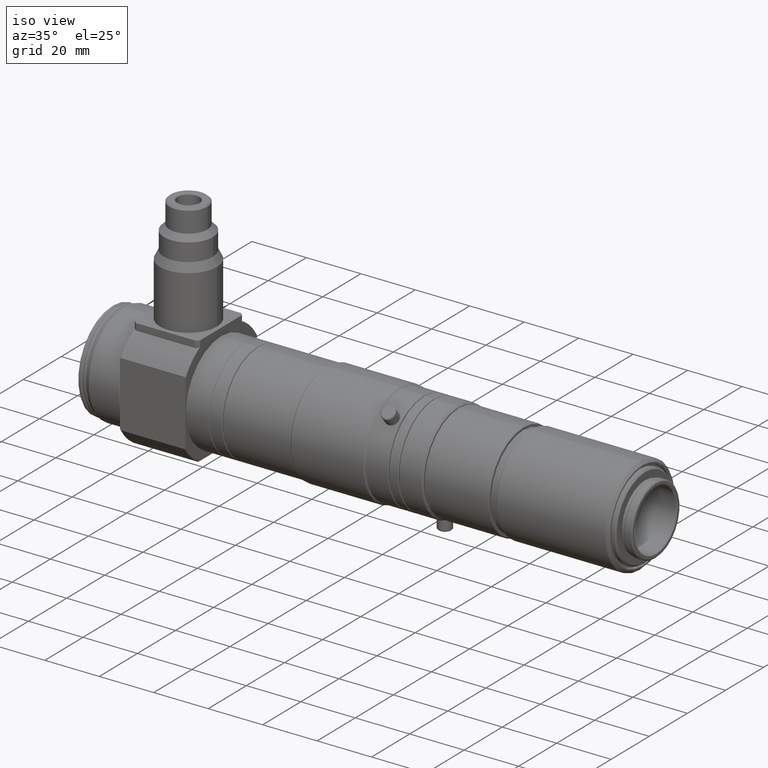
[diagram: clean part render]
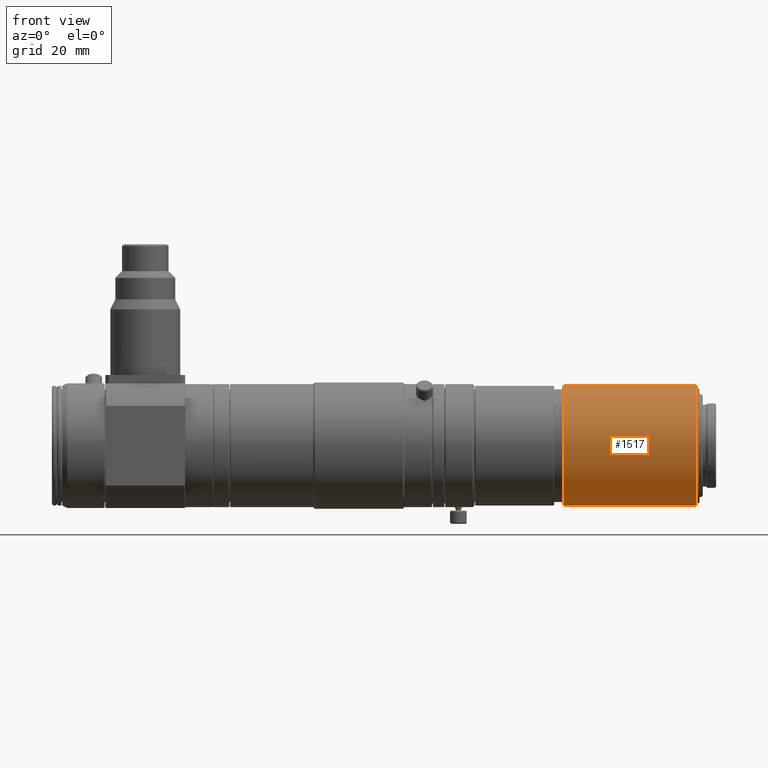
[diagram: tour spotlight — one face highlighted and labeled with its STEP entity id]
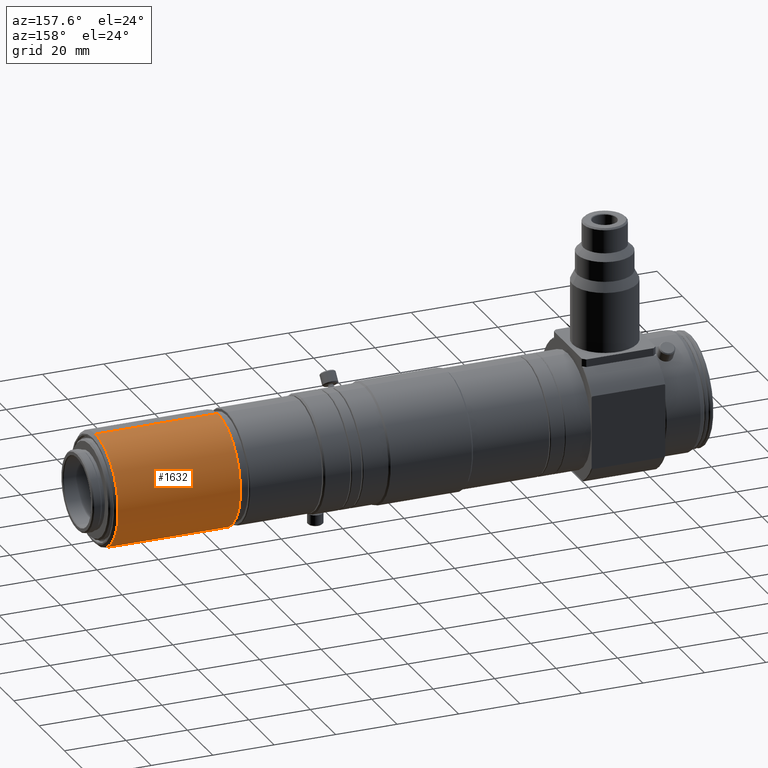
[diagram: tour spotlight — one face highlighted and labeled with its STEP entity id]
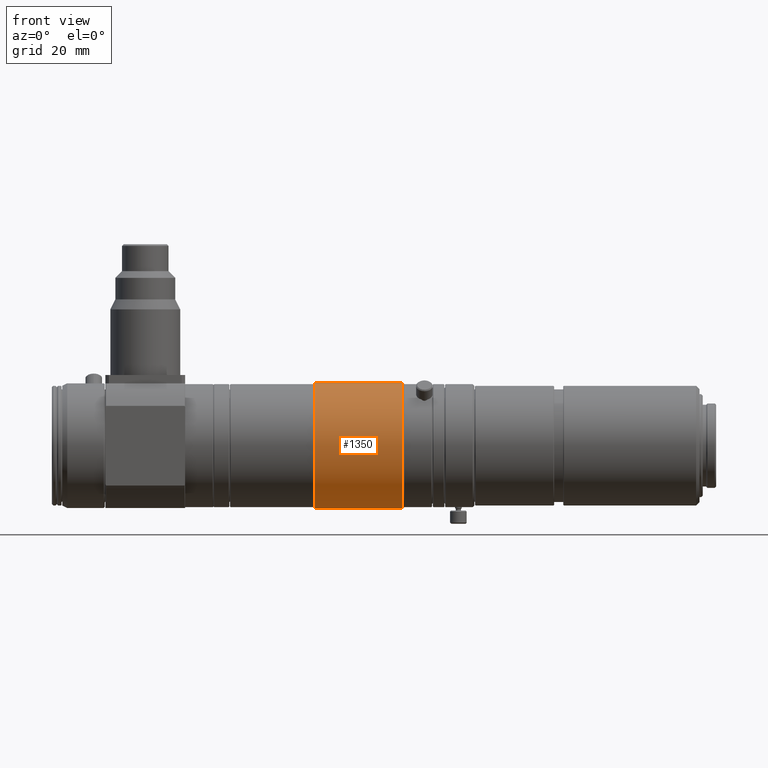
[diagram: tour spotlight — one face highlighted and labeled with its STEP entity id]
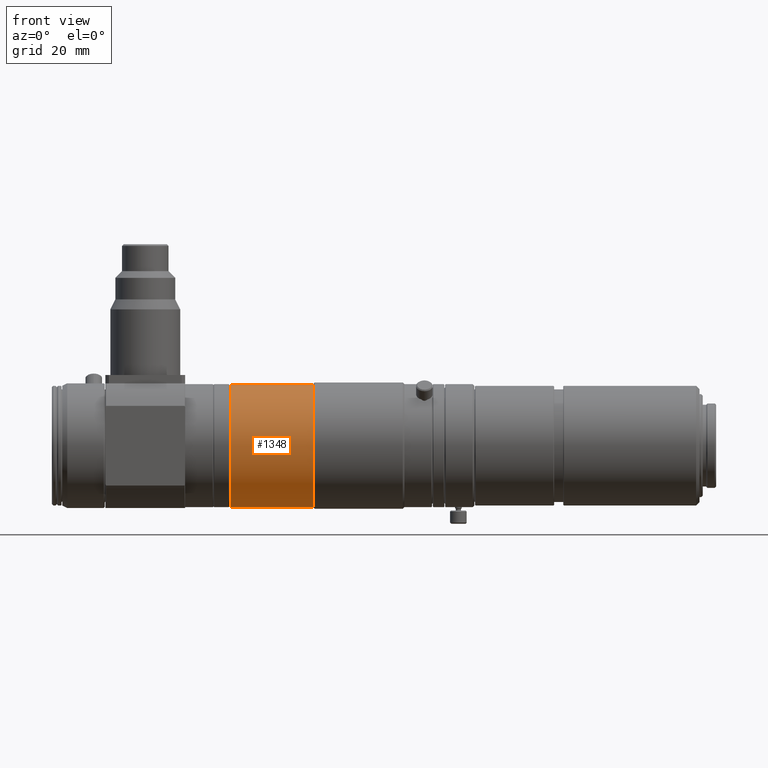
[diagram: tour spotlight — one face highlighted and labeled with its STEP entity id]
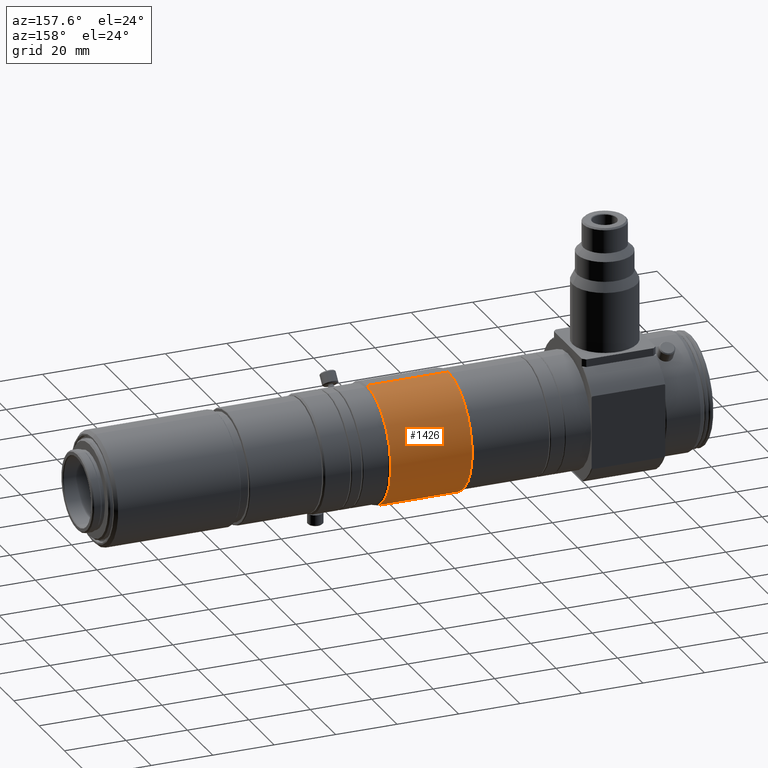
[diagram: tour spotlight — one face highlighted and labeled with its STEP entity id]
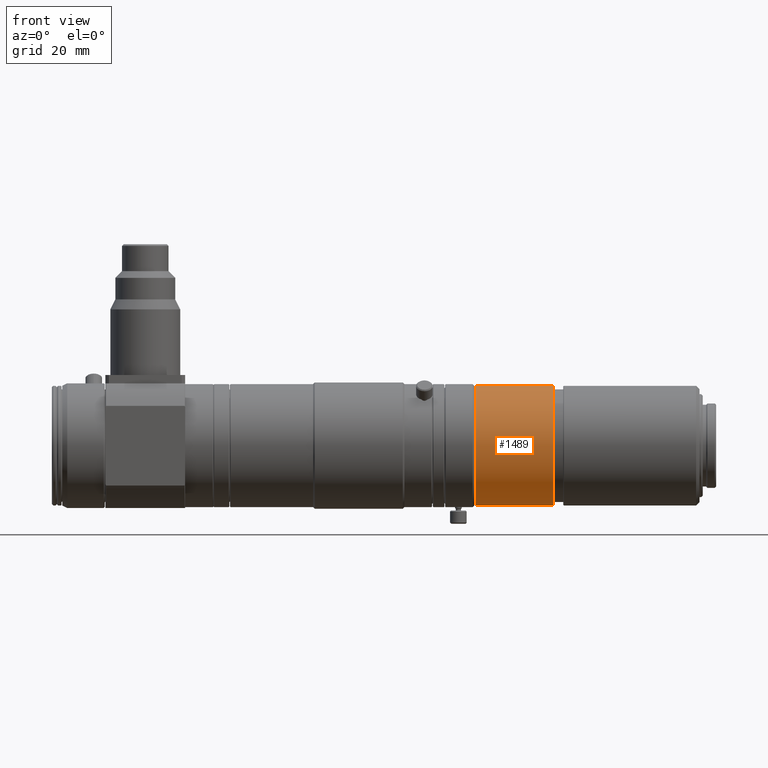
[diagram: tour spotlight — one face highlighted and labeled with its STEP entity id]
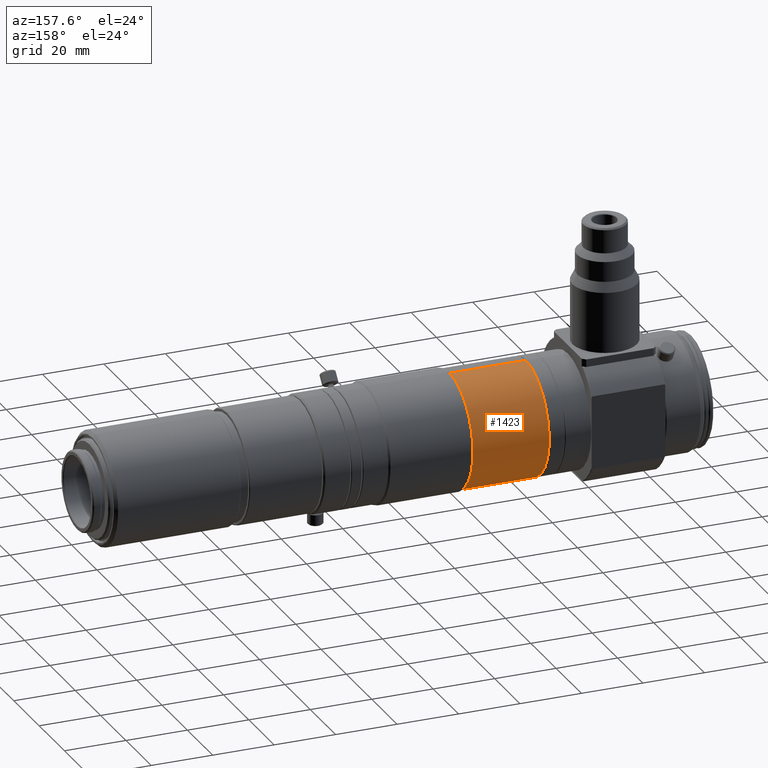
[diagram: tour spotlight — one face highlighted and labeled with its STEP entity id]
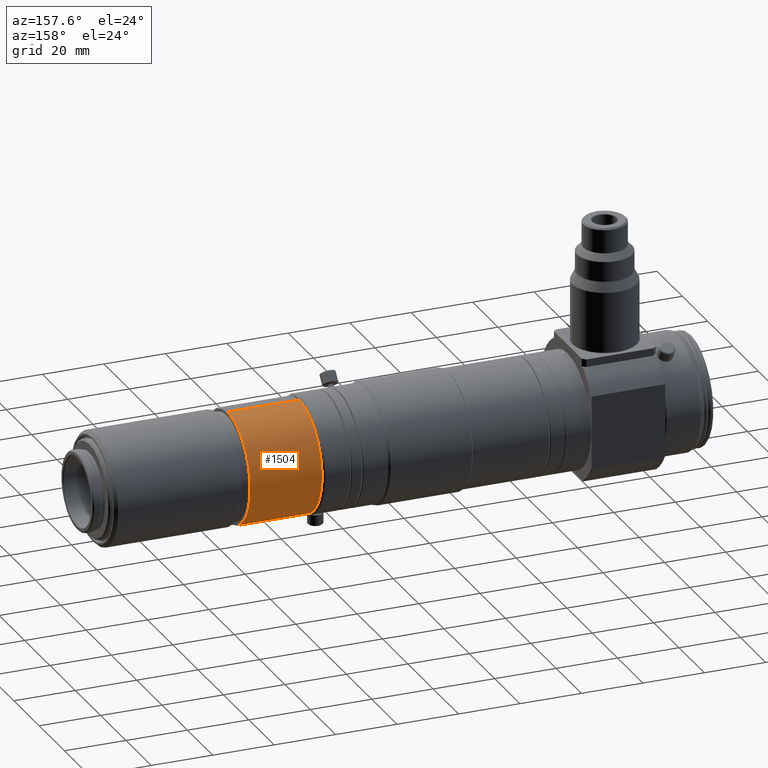
[diagram: tour spotlight — one face highlighted and labeled with its STEP entity id]
A machine part: a face-by-face anatomy tour. The part has 281 B-rep faces; the first image is the clean iso view, then the 8 largest visible faces are spotlighted one at a time (largest first), each with its STEP entity span.

Face 1 — front view, entity #1517. In plain terms, the highlighted cylindrical surface (partial cylindrical patch) has radius 18 mm, axis along (1, -0, -0).
Definition (entity closure, byte-faithful):
#35 = VERTEX_POINT ( 'NONE', #1274 ) ;
#40 = VERTEX_POINT ( 'NONE', #1278 ) ;
#65 = VERTEX_POINT ( 'NONE', #1283 ) ;
#70 = VERTEX_POINT ( 'NONE', #1236 ) ;
#1236 = CARTESIAN_POINT ( 'NONE',  ( -59.32600000000002200, 0.0000000000000000000, -18.00000000000007100 ) ) ;
#1274 = CARTESIAN_POINT ( 'NONE',  ( -19.52600000000001000, 0.0000000000000000000, 18.00000000000007100 ) ) ;
#1278 = CARTESIAN_POINT ( 'NONE',  ( -19.52600000000001000, 2.204364238465244500E-015, -18.00000000000007100 ) ) ;
#1283 = CARTESIAN_POINT ( 'NONE',  ( -59.32600000000002200, 2.204364238465244500E-015, 18.00000000000007100 ) ) ;
#1517 = ADVANCED_FACE ( 'NONE', ( #5791 ), #5795, .T. ) ;
#1939 = EDGE_CURVE ( 'NONE', #35, #40, #6701, .T. ) ;
#1940 = EDGE_CURVE ( 'NONE', #65, #70, #6702, .T. ) ;
#2020 = CARTESIAN_POINT ( 'NONE',  ( -19.52600000000001000, 0.0000000000000000000, 0.0000000000000000000 ) ) ;
#2021 = DIRECTION ( 'NONE',  ( 1.000000000000000000, -0.0000000000000000000, -0.0000000000000000000 ) ) ;
#2022 = DIRECTION ( 'NONE',  ( 0.0000000000000000000, 0.0000000000000000000, -1.000000000000000000 ) ) ;
#2023 = CARTESIAN_POINT ( 'NONE',  ( -59.32600000000002200, 0.0000000000000000000, 0.0000000000000000000 ) ) ;
#2024 = DIRECTION ( 'NONE',  ( 1.000000000000000000, -0.0000000000000000000, -0.0000000000000000000 ) ) ;
#2025 = DIRECTION ( 'NONE',  ( 0.0000000000000000000, 0.0000000000000000000, -1.000000000000000000 ) ) ;
#2223 = CARTESIAN_POINT ( 'NONE',  ( 0.0000000000000000000, 2.204364238465244500E-015, 18.00000000000007100 ) ) ;
#2224 = DIRECTION ( 'NONE',  ( 1.000000000000000000, -0.0000000000000000000, -0.0000000000000000000 ) ) ;
#2626 = CARTESIAN_POINT ( 'NONE',  ( 0.0000000000000000000, 0.0000000000000000000, -18.00000000000007100 ) ) ;
#2627 = DIRECTION ( 'NONE',  ( 1.000000000000000000, -0.0000000000000000000, -0.0000000000000000000 ) ) ;
#3289 = DIRECTION ( 'NONE',  ( 0.0000000000000000000, 0.0000000000000000000, -1.000000000000000000 ) ) ;
#3290 = CARTESIAN_POINT ( 'NONE',  ( 0.0000000000000000000, 0.0000000000000000000, 0.0000000000000000000 ) ) ;
#3294 = DIRECTION ( 'NONE',  ( 1.000000000000000000, -0.0000000000000000000, -0.0000000000000000000 ) ) ;
#3382 = EDGE_CURVE ( 'NONE', #65, #35, #6811, .T. ) ;
#3526 = EDGE_CURVE ( 'NONE', #70, #40, #7033, .T. ) ;
#4224 = EDGE_LOOP ( 'NONE', ( #4982, #4983, #4984, #4985 ) ) ;
#4670 = AXIS2_PLACEMENT_3D ( 'NONE', #3290, #3294, #3289 ) ;
#4982 = ORIENTED_EDGE ( 'NONE', *, *, #3382, .F. ) ;
#4983 = ORIENTED_EDGE ( 'NONE', *, *, #1940, .T. ) ;
#4984 = ORIENTED_EDGE ( 'NONE', *, *, #3526, .T. ) ;
#4985 = ORIENTED_EDGE ( 'NONE', *, *, #1939, .F. ) ;
#5791 = FACE_OUTER_BOUND ( 'NONE', #4224, .T. ) ;
#5795 = CYLINDRICAL_SURFACE ( 'NONE', #4670, 18.00000000000007100 ) ;
#6701 = CIRCLE ( 'NONE', #7236, 18.00000000000007100 ) ;
#6702 = CIRCLE ( 'NONE', #7237, 18.00000000000007100 ) ;
#6811 = LINE ( 'NONE', #2223, #6813 ) ;
#6813 = VECTOR ( 'NONE', #2224, 1000.000000000000000 ) ;
#7033 = LINE ( 'NONE', #2626, #7036 ) ;
#7036 = VECTOR ( 'NONE', #2627, 1000.000000000000000 ) ;
#7236 = AXIS2_PLACEMENT_3D ( 'NONE', #2020, #2021, #2022 ) ;
#7237 = AXIS2_PLACEMENT_3D ( 'NONE', #2023, #2024, #2025 ) ;

Face 2 — auxiliary view, entity #1632. In plain terms, the highlighted cylindrical surface (partial cylindrical patch) has radius 18 mm, axis along (1, -0, -0).
Definition (entity closure, byte-faithful):
#35 = VERTEX_POINT ( 'NONE', #1274 ) ;
#40 = VERTEX_POINT ( 'NONE', #1278 ) ;
#65 = VERTEX_POINT ( 'NONE', #1283 ) ;
#70 = VERTEX_POINT ( 'NONE', #1236 ) ;
#123 = DIRECTION ( 'NONE',  ( 0.0000000000000000000, 0.0000000000000000000, -1.000000000000000000 ) ) ;
#132 = DIRECTION ( 'NONE',  ( 1.000000000000000000, -0.0000000000000000000, -0.0000000000000000000 ) ) ;
#136 = CARTESIAN_POINT ( 'NONE',  ( 0.0000000000000000000, 0.0000000000000000000, 0.0000000000000000000 ) ) ;
#1236 = CARTESIAN_POINT ( 'NONE',  ( -59.32600000000002200, 0.0000000000000000000, -18.00000000000007100 ) ) ;
#1274 = CARTESIAN_POINT ( 'NONE',  ( -19.52600000000001000, 0.0000000000000000000, 18.00000000000007100 ) ) ;
#1278 = CARTESIAN_POINT ( 'NONE',  ( -19.52600000000001000, 2.204364238465244500E-015, -18.00000000000007100 ) ) ;
#1283 = CARTESIAN_POINT ( 'NONE',  ( -59.32600000000002200, 2.204364238465244500E-015, 18.00000000000007100 ) ) ;
#1632 = ADVANCED_FACE ( 'NONE', ( #5917 ), #5928, .T. ) ;
#2223 = CARTESIAN_POINT ( 'NONE',  ( 0.0000000000000000000, 2.204364238465244500E-015, 18.00000000000007100 ) ) ;
#2224 = DIRECTION ( 'NONE',  ( 1.000000000000000000, -0.0000000000000000000, -0.0000000000000000000 ) ) ;
#2271 = CARTESIAN_POINT ( 'NONE',  ( -59.32600000000002200, 0.0000000000000000000, 0.0000000000000000000 ) ) ;
#2272 = DIRECTION ( 'NONE',  ( 1.000000000000000000, -0.0000000000000000000, -0.0000000000000000000 ) ) ;
#2273 = DIRECTION ( 'NONE',  ( 0.0000000000000000000, 0.0000000000000000000, -1.000000000000000000 ) ) ;
#2547 = CARTESIAN_POINT ( 'NONE',  ( -19.52600000000001000, 0.0000000000000000000, 0.0000000000000000000 ) ) ;
#2548 = DIRECTION ( 'NONE',  ( 1.000000000000000000, -0.0000000000000000000, -0.0000000000000000000 ) ) ;
#2549 = DIRECTION ( 'NONE',  ( 0.0000000000000000000, 0.0000000000000000000, -1.000000000000000000 ) ) ;
#2626 = CARTESIAN_POINT ( 'NONE',  ( 0.0000000000000000000, 0.0000000000000000000, -18.00000000000007100 ) ) ;
#2627 = DIRECTION ( 'NONE',  ( 1.000000000000000000, -0.0000000000000000000, -0.0000000000000000000 ) ) ;
#3382 = EDGE_CURVE ( 'NONE', #65, #35, #6811, .T. ) ;
#3393 = EDGE_CURVE ( 'NONE', #70, #65, #6826, .T. ) ;
#3492 = EDGE_CURVE ( 'NONE', #40, #35, #6978, .T. ) ;
#3526 = EDGE_CURVE ( 'NONE', #70, #40, #7033, .T. ) ;
#3957 = ORIENTED_EDGE ( 'NONE', *, *, #3382, .T. ) ;
#4031 = ORIENTED_EDGE ( 'NONE', *, *, #3393, .T. ) ;
#4072 = ORIENTED_EDGE ( 'NONE', *, *, #3526, .F. ) ;
#4073 = ORIENTED_EDGE ( 'NONE', *, *, #3492, .F. ) ;
#4312 = EDGE_LOOP ( 'NONE', ( #4031, #3957, #4073, #4072 ) ) ;
#5917 = FACE_OUTER_BOUND ( 'NONE', #4312, .T. ) ;
#5928 = CYLINDRICAL_SURFACE ( 'NONE', #6202, 18.00000000000007100 ) ;
#6202 = AXIS2_PLACEMENT_3D ( 'NONE', #136, #132, #123 ) ;
#6811 = LINE ( 'NONE', #2223, #6813 ) ;
#6813 = VECTOR ( 'NONE', #2224, 1000.000000000000000 ) ;
#6826 = CIRCLE ( 'NONE', #7289, 18.00000000000007100 ) ;
#6978 = CIRCLE ( 'NONE', #7334, 18.00000000000007100 ) ;
#7033 = LINE ( 'NONE', #2626, #7036 ) ;
#7036 = VECTOR ( 'NONE', #2627, 1000.000000000000000 ) ;
#7289 = AXIS2_PLACEMENT_3D ( 'NONE', #2271, #2272, #2273 ) ;
#7334 = AXIS2_PLACEMENT_3D ( 'NONE', #2547, #2548, #2549 ) ;

Face 3 — front view, entity #1350. In plain terms, the highlighted cylindrical surface (partial cylindrical patch) has radius 19 mm, axis along (1, -0, -0).
Definition (entity closure, byte-faithful):
#652 = CARTESIAN_POINT ( 'NONE',  ( -107.7921752784120300, 0.0000000000000000000, 0.0000000000000000000 ) ) ;
#653 = DIRECTION ( 'NONE',  ( 1.000000000000000000, -0.0000000000000000000, -0.0000000000000000000 ) ) ;
#654 = DIRECTION ( 'NONE',  ( 0.0000000000000000000, 0.0000000000000000000, -1.000000000000000000 ) ) ;
#655 = CARTESIAN_POINT ( 'NONE',  ( -134.2921752784120300, 0.0000000000000000000, 0.0000000000000000000 ) ) ;
#656 = DIRECTION ( 'NONE',  ( 1.000000000000000000, -0.0000000000000000000, -0.0000000000000000000 ) ) ;
#657 = DIRECTION ( 'NONE',  ( 0.0000000000000000000, 0.0000000000000000000, -1.000000000000000000 ) ) ;
#1048 = DIRECTION ( 'NONE',  ( 1.000000000000000000, -0.0000000000000000000, -0.0000000000000000000 ) ) ;
#1119 = DIRECTION ( 'NONE',  ( 0.0000000000000000000, 0.0000000000000000000, -1.000000000000000000 ) ) ;
#1121 = CARTESIAN_POINT ( 'NONE',  ( 0.0000000000000000000, 0.0000000000000000000, 0.0000000000000000000 ) ) ;
#1350 = ADVANCED_FACE ( 'NONE', ( #5566 ), #5568, .T. ) ;
#1842 = EDGE_CURVE ( 'NONE', #5371, #5486, #6596, .T. ) ;
#1843 = EDGE_CURVE ( 'NONE', #5466, #5323, #6590, .T. ) ;
#2050 = CARTESIAN_POINT ( 'NONE',  ( 0.0000000000000000000, 2.326828918379974500E-015, 19.00000000000002800 ) ) ;
#2139 = DIRECTION ( 'NONE',  ( 1.000000000000000000, -0.0000000000000000000, -0.0000000000000000000 ) ) ;
#2148 = CARTESIAN_POINT ( 'NONE',  ( 0.0000000000000000000, 0.0000000000000000000, -19.00000000000002800 ) ) ;
#2149 = DIRECTION ( 'NONE',  ( 1.000000000000000000, -0.0000000000000000000, -0.0000000000000000000 ) ) ;
#3070 = CARTESIAN_POINT ( 'NONE',  ( -134.2921752784120300, 0.0000000000000000000, -19.00000000000002800 ) ) ;
#3118 = CARTESIAN_POINT ( 'NONE',  ( -107.7921752784120300, 0.0000000000000000000, 19.00000000000002800 ) ) ;
#3213 = CARTESIAN_POINT ( 'NONE',  ( -134.2921752784120300, 2.326828918379974500E-015, 19.00000000000002800 ) ) ;
#3233 = CARTESIAN_POINT ( 'NONE',  ( -107.7921752784120300, 2.326828918379974500E-015, -19.00000000000002800 ) ) ;
#3346 = EDGE_CURVE ( 'NONE', #5466, #5371, #6752, .T. ) ;
#3348 = EDGE_CURVE ( 'NONE', #5323, #5486, #6755, .T. ) ;
#3937 = ORIENTED_EDGE ( 'NONE', *, *, #3346, .F. ) ;
#4196 = EDGE_LOOP ( 'NONE', ( #3937, #5246, #5253, #5251 ) ) ;
#4560 = AXIS2_PLACEMENT_3D ( 'NONE', #1121, #1048, #1119 ) ;
#5246 = ORIENTED_EDGE ( 'NONE', *, *, #1843, .T. ) ;
#5251 = ORIENTED_EDGE ( 'NONE', *, *, #1842, .F. ) ;
#5253 = ORIENTED_EDGE ( 'NONE', *, *, #3348, .T. ) ;
#5323 = VERTEX_POINT ( 'NONE', #3070 ) ;
#5371 = VERTEX_POINT ( 'NONE', #3118 ) ;
#5466 = VERTEX_POINT ( 'NONE', #3213 ) ;
#5486 = VERTEX_POINT ( 'NONE', #3233 ) ;
#5566 = FACE_OUTER_BOUND ( 'NONE', #4196, .T. ) ;
#5568 = CYLINDRICAL_SURFACE ( 'NONE', #4560, 19.00000000000002800 ) ;
#6348 = AXIS2_PLACEMENT_3D ( 'NONE', #652, #653, #654 ) ;
#6349 = AXIS2_PLACEMENT_3D ( 'NONE', #655, #656, #657 ) ;
#6590 = CIRCLE ( 'NONE', #6349, 19.00000000000002800 ) ;
#6596 = CIRCLE ( 'NONE', #6348, 19.00000000000002800 ) ;
#6752 = LINE ( 'NONE', #2050, #6754 ) ;
#6754 = VECTOR ( 'NONE', #2139, 1000.000000000000000 ) ;
#6755 = LINE ( 'NONE', #2148, #6758 ) ;
#6758 = VECTOR ( 'NONE', #2149, 1000.000000000000000 ) ;

Face 4 — front view, entity #1348. In plain terms, the highlighted cylindrical surface (partial cylindrical patch) has radius 18.5 mm, axis along (1, -0, -0).
Definition (entity closure, byte-faithful):
#658 = CARTESIAN_POINT ( 'NONE',  ( -134.7921752784120300, 0.0000000000000000000, 0.0000000000000000000 ) ) ;
#659 = DIRECTION ( 'NONE',  ( 1.000000000000000000, -0.0000000000000000000, -0.0000000000000000000 ) ) ;
#660 = DIRECTION ( 'NONE',  ( 0.0000000000000000000, 0.0000000000000000000, -1.000000000000000000 ) ) ;
#661 = CARTESIAN_POINT ( 'NONE',  ( -159.5921752784120400, 0.0000000000000000000, 0.0000000000000000000 ) ) ;
#662 = DIRECTION ( 'NONE',  ( 1.000000000000000000, -0.0000000000000000000, -0.0000000000000000000 ) ) ;
#663 = DIRECTION ( 'NONE',  ( 0.0000000000000000000, 0.0000000000000000000, -1.000000000000000000 ) ) ;
#1039 = DIRECTION ( 'NONE',  ( 1.000000000000000000, -0.0000000000000000000, -0.0000000000000000000 ) ) ;
#1122 = CARTESIAN_POINT ( 'NONE',  ( 0.0000000000000000000, 0.0000000000000000000, 0.0000000000000000000 ) ) ;
#1126 = DIRECTION ( 'NONE',  ( 0.0000000000000000000, 0.0000000000000000000, -1.000000000000000000 ) ) ;
#1348 = ADVANCED_FACE ( 'NONE', ( #5563 ), #5570, .T. ) ;
#1844 = EDGE_CURVE ( 'NONE', #5365, #5318, #6598, .T. ) ;
#1845 = EDGE_CURVE ( 'NONE', #5398, #5448, #6597, .T. ) ;
#2736 = CARTESIAN_POINT ( 'NONE',  ( 0.0000000000000000000, 2.265596578422607300E-015, 18.50000000000003200 ) ) ;
#2738 = DIRECTION ( 'NONE',  ( 1.000000000000000000, -0.0000000000000000000, -0.0000000000000000000 ) ) ;
#2742 = CARTESIAN_POINT ( 'NONE',  ( 0.0000000000000000000, 0.0000000000000000000, -18.50000000000003200 ) ) ;
#2743 = DIRECTION ( 'NONE',  ( 1.000000000000000000, -0.0000000000000000000, -0.0000000000000000000 ) ) ;
#3065 = CARTESIAN_POINT ( 'NONE',  ( -134.7921752784120300, 0.0000000000000000000, -18.50000000000003200 ) ) ;
#3112 = CARTESIAN_POINT ( 'NONE',  ( -134.7921752784120300, 2.296212748401290700E-015, 18.50000000000003200 ) ) ;
#3145 = CARTESIAN_POINT ( 'NONE',  ( -159.5921752784120400, 2.265596578422607300E-015, 18.50000000000003200 ) ) ;
#3195 = CARTESIAN_POINT ( 'NONE',  ( -159.5921752784120400, 0.0000000000000000000, -18.50000000000003200 ) ) ;
#3572 = EDGE_CURVE ( 'NONE', #5398, #5365, #7465, .T. ) ;
#3575 = EDGE_CURVE ( 'NONE', #5448, #5318, #7471, .T. ) ;
#4197 = EDGE_LOOP ( 'NONE', ( #5256, #5258, #5262, #5261 ) ) ;
#4558 = AXIS2_PLACEMENT_3D ( 'NONE', #1122, #1039, #1126 ) ;
#5256 = ORIENTED_EDGE ( 'NONE', *, *, #3572, .F. ) ;
#5258 = ORIENTED_EDGE ( 'NONE', *, *, #1845, .T. ) ;
#5261 = ORIENTED_EDGE ( 'NONE', *, *, #1844, .F. ) ;
#5262 = ORIENTED_EDGE ( 'NONE', *, *, #3575, .T. ) ;
#5318 = VERTEX_POINT ( 'NONE', #3065 ) ;
#5365 = VERTEX_POINT ( 'NONE', #3112 ) ;
#5398 = VERTEX_POINT ( 'NONE', #3145 ) ;
#5448 = VERTEX_POINT ( 'NONE', #3195 ) ;
#5563 = FACE_OUTER_BOUND ( 'NONE', #4197, .T. ) ;
#5570 = CYLINDRICAL_SURFACE ( 'NONE', #4558, 18.50000000000003200 ) ;
#6350 = AXIS2_PLACEMENT_3D ( 'NONE', #658, #659, #660 ) ;
#6351 = AXIS2_PLACEMENT_3D ( 'NONE', #661, #662, #663 ) ;
#6597 = CIRCLE ( 'NONE', #6351, 18.50000000000003200 ) ;
#6598 = CIRCLE ( 'NONE', #6350, 18.50000000000003200 ) ;
#7465 = LINE ( 'NONE', #2736, #7468 ) ;
#7468 = VECTOR ( 'NONE', #2738, 1000.000000000000000 ) ;
#7471 = LINE ( 'NONE', #2742, #7474 ) ;
#7474 = VECTOR ( 'NONE', #2743, 1000.000000000000000 ) ;

Face 5 — auxiliary view, entity #1426. In plain terms, the highlighted cylindrical surface (partial cylindrical patch) has radius 19 mm, axis along (1, -0, -0).
Definition (entity closure, byte-faithful):
#1137 = DIRECTION ( 'NONE',  ( 0.0000000000000000000, 0.0000000000000000000, -1.000000000000000000 ) ) ;
#1198 = CARTESIAN_POINT ( 'NONE',  ( 0.0000000000000000000, 0.0000000000000000000, 0.0000000000000000000 ) ) ;
#1209 = DIRECTION ( 'NONE',  ( 1.000000000000000000, -0.0000000000000000000, -0.0000000000000000000 ) ) ;
#1426 = ADVANCED_FACE ( 'NONE', ( #5697 ), #5691, .T. ) ;
#2050 = CARTESIAN_POINT ( 'NONE',  ( 0.0000000000000000000, 2.326828918379974500E-015, 19.00000000000002800 ) ) ;
#2139 = DIRECTION ( 'NONE',  ( 1.000000000000000000, -0.0000000000000000000, -0.0000000000000000000 ) ) ;
#2148 = CARTESIAN_POINT ( 'NONE',  ( 0.0000000000000000000, 0.0000000000000000000, -19.00000000000002800 ) ) ;
#2149 = DIRECTION ( 'NONE',  ( 1.000000000000000000, -0.0000000000000000000, -0.0000000000000000000 ) ) ;
#2155 = CARTESIAN_POINT ( 'NONE',  ( -107.7921752784120300, 0.0000000000000000000, 0.0000000000000000000 ) ) ;
#2156 = DIRECTION ( 'NONE',  ( 1.000000000000000000, -0.0000000000000000000, -0.0000000000000000000 ) ) ;
#2157 = DIRECTION ( 'NONE',  ( 0.0000000000000000000, 0.0000000000000000000, -1.000000000000000000 ) ) ;
#3001 = CARTESIAN_POINT ( 'NONE',  ( -134.2921752784120300, 0.0000000000000000000, 0.0000000000000000000 ) ) ;
#3002 = DIRECTION ( 'NONE',  ( 1.000000000000000000, -0.0000000000000000000, -0.0000000000000000000 ) ) ;
#3003 = DIRECTION ( 'NONE',  ( 0.0000000000000000000, 0.0000000000000000000, -1.000000000000000000 ) ) ;
#3070 = CARTESIAN_POINT ( 'NONE',  ( -134.2921752784120300, 0.0000000000000000000, -19.00000000000002800 ) ) ;
#3118 = CARTESIAN_POINT ( 'NONE',  ( -107.7921752784120300, 0.0000000000000000000, 19.00000000000002800 ) ) ;
#3213 = CARTESIAN_POINT ( 'NONE',  ( -134.2921752784120300, 2.326828918379974500E-015, 19.00000000000002800 ) ) ;
#3233 = CARTESIAN_POINT ( 'NONE',  ( -107.7921752784120300, 2.326828918379974500E-015, -19.00000000000002800 ) ) ;
#3346 = EDGE_CURVE ( 'NONE', #5466, #5371, #6752, .T. ) ;
#3348 = EDGE_CURVE ( 'NONE', #5323, #5486, #6755, .T. ) ;
#3350 = EDGE_CURVE ( 'NONE', #5486, #5371, #6753, .T. ) ;
#3769 = ORIENTED_EDGE ( 'NONE', *, *, #3346, .T. ) ;
#3832 = ORIENTED_EDGE ( 'NONE', *, *, #4527, .T. ) ;
#3860 = ORIENTED_EDGE ( 'NONE', *, *, #3350, .F. ) ;
#3864 = ORIENTED_EDGE ( 'NONE', *, *, #3348, .F. ) ;
#4405 = EDGE_LOOP ( 'NONE', ( #3832, #3769, #3860, #3864 ) ) ;
#4527 = EDGE_CURVE ( 'NONE', #5323, #5466, #7586, .T. ) ;
#4624 = AXIS2_PLACEMENT_3D ( 'NONE', #1198, #1209, #1137 ) ;
#5323 = VERTEX_POINT ( 'NONE', #3070 ) ;
#5371 = VERTEX_POINT ( 'NONE', #3118 ) ;
#5466 = VERTEX_POINT ( 'NONE', #3213 ) ;
#5486 = VERTEX_POINT ( 'NONE', #3233 ) ;
#5691 = CYLINDRICAL_SURFACE ( 'NONE', #4624, 19.00000000000002800 ) ;
#5697 = FACE_OUTER_BOUND ( 'NONE', #4405, .T. ) ;
#6752 = LINE ( 'NONE', #2050, #6754 ) ;
#6753 = CIRCLE ( 'NONE', #7274, 19.00000000000002800 ) ;
#6754 = VECTOR ( 'NONE', #2139, 1000.000000000000000 ) ;
#6755 = LINE ( 'NONE', #2148, #6758 ) ;
#6758 = VECTOR ( 'NONE', #2149, 1000.000000000000000 ) ;
#7274 = AXIS2_PLACEMENT_3D ( 'NONE', #2155, #2156, #2157 ) ;
#7399 = AXIS2_PLACEMENT_3D ( 'NONE', #3001, #3002, #3003 ) ;
#7586 = CIRCLE ( 'NONE', #7399, 19.00000000000002800 ) ;

Face 6 — front view, entity #1489. In plain terms, the highlighted cylindrical surface (partial cylindrical patch) has radius 18 mm, axis along (1, -0, -0).
Definition (entity closure, byte-faithful):
#3 = ORIENTED_EDGE ( 'NONE', *, *, #1755, .T. ) ;
#79 = ORIENTED_EDGE ( 'NONE', *, *, #1820, .F. ) ;
#83 = ORIENTED_EDGE ( 'NONE', *, *, #1821, .T. ) ;
#89 = ORIENTED_EDGE ( 'NONE', *, *, #1753, .F. ) ;
#558 = CARTESIAN_POINT ( 'NONE',  ( -62.47219436237682500, 0.0000000000000000000, 0.0000000000000000000 ) ) ;
#559 = DIRECTION ( 'NONE',  ( 1.000000000000000000, -0.0000000000000000000, -0.0000000000000000000 ) ) ;
#560 = DIRECTION ( 'NONE',  ( 0.0000000000000000000, 0.0000000000000000000, -1.000000000000000000 ) ) ;
#561 = CARTESIAN_POINT ( 'NONE',  ( -85.87219436237681700, 0.0000000000000000000, 0.0000000000000000000 ) ) ;
#562 = DIRECTION ( 'NONE',  ( 1.000000000000000000, -0.0000000000000000000, -0.0000000000000000000 ) ) ;
#563 = DIRECTION ( 'NONE',  ( 0.0000000000000000000, 0.0000000000000000000, -1.000000000000000000 ) ) ;
#967 = CARTESIAN_POINT ( 'NONE',  ( 0.0000000000000000000, 0.0000000000000000000, 0.0000000000000000000 ) ) ;
#970 = DIRECTION ( 'NONE',  ( 0.0000000000000000000, 0.0000000000000000000, -1.000000000000000000 ) ) ;
#972 = DIRECTION ( 'NONE',  ( 1.000000000000000000, -0.0000000000000000000, -0.0000000000000000000 ) ) ;
#1489 = ADVANCED_FACE ( 'NONE', ( #5754 ), #5760, .T. ) ;
#1753 = EDGE_CURVE ( 'NONE', #5366, #5451, #6496, .T. ) ;
#1755 = EDGE_CURVE ( 'NONE', #5411, #5337, #6497, .T. ) ;
#1820 = EDGE_CURVE ( 'NONE', #5451, #5337, #6576, .T. ) ;
#1821 = EDGE_CURVE ( 'NONE', #5366, #5411, #6577, .T. ) ;
#3084 = CARTESIAN_POINT ( 'NONE',  ( -62.47219436237682500, 2.204364238465252800E-015, -18.00000000000014200 ) ) ;
#3113 = CARTESIAN_POINT ( 'NONE',  ( -85.87219436237681700, 2.204364238465252800E-015, 18.00000000000014200 ) ) ;
#3158 = CARTESIAN_POINT ( 'NONE',  ( -85.87219436237681700, 0.0000000000000000000, -18.00000000000014200 ) ) ;
#3198 = CARTESIAN_POINT ( 'NONE',  ( -62.47219436237682500, 0.0000000000000000000, 18.00000000000014200 ) ) ;
#4217 = EDGE_LOOP ( 'NONE', ( #89, #83, #3, #79 ) ) ;
#4657 = AXIS2_PLACEMENT_3D ( 'NONE', #967, #972, #970 ) ;
#5337 = VERTEX_POINT ( 'NONE', #3084 ) ;
#5366 = VERTEX_POINT ( 'NONE', #3113 ) ;
#5411 = VERTEX_POINT ( 'NONE', #3158 ) ;
#5451 = VERTEX_POINT ( 'NONE', #3198 ) ;
#5754 = FACE_OUTER_BOUND ( 'NONE', #4217, .T. ) ;
#5760 = CYLINDRICAL_SURFACE ( 'NONE', #4657, 18.00000000000014200 ) ;
#6328 = AXIS2_PLACEMENT_3D ( 'NONE', #558, #559, #560 ) ;
#6329 = AXIS2_PLACEMENT_3D ( 'NONE', #561, #562, #563 ) ;
#6409 = CARTESIAN_POINT ( 'NONE',  ( 0.0000000000000000000, 2.204364238465252800E-015, 18.00000000000014200 ) ) ;
#6414 = DIRECTION ( 'NONE',  ( 1.000000000000000000, -0.0000000000000000000, -0.0000000000000000000 ) ) ;
#6415 = DIRECTION ( 'NONE',  ( 1.000000000000000000, -0.0000000000000000000, -0.0000000000000000000 ) ) ;
#6416 = CARTESIAN_POINT ( 'NONE',  ( 0.0000000000000000000, 0.0000000000000000000, -18.00000000000014200 ) ) ;
#6496 = LINE ( 'NONE', #6409, #6500 ) ;
#6497 = LINE ( 'NONE', #6416, #6503 ) ;
#6500 = VECTOR ( 'NONE', #6415, 1000.000000000000000 ) ;
#6503 = VECTOR ( 'NONE', #6414, 1000.000000000000000 ) ;
#6576 = CIRCLE ( 'NONE', #6328, 18.00000000000014200 ) ;
#6577 = CIRCLE ( 'NONE', #6329, 18.00000000000014200 ) ;

Face 7 — auxiliary view, entity #1423. In plain terms, the highlighted cylindrical surface (partial cylindrical patch) has radius 18.5 mm, axis along (1, -0, -0).
Definition (entity closure, byte-faithful):
#1140 = DIRECTION ( 'NONE',  ( 1.000000000000000000, -0.0000000000000000000, -0.0000000000000000000 ) ) ;
#1195 = CARTESIAN_POINT ( 'NONE',  ( 0.0000000000000000000, 0.0000000000000000000, 0.0000000000000000000 ) ) ;
#1218 = DIRECTION ( 'NONE',  ( 0.0000000000000000000, 0.0000000000000000000, -1.000000000000000000 ) ) ;
#1423 = ADVANCED_FACE ( 'NONE', ( #5693 ), #5699, .T. ) ;
#2736 = CARTESIAN_POINT ( 'NONE',  ( 0.0000000000000000000, 2.265596578422607300E-015, 18.50000000000003200 ) ) ;
#2738 = DIRECTION ( 'NONE',  ( 1.000000000000000000, -0.0000000000000000000, -0.0000000000000000000 ) ) ;
#2742 = CARTESIAN_POINT ( 'NONE',  ( 0.0000000000000000000, 0.0000000000000000000, -18.50000000000003200 ) ) ;
#2743 = DIRECTION ( 'NONE',  ( 1.000000000000000000, -0.0000000000000000000, -0.0000000000000000000 ) ) ;
#2746 = CARTESIAN_POINT ( 'NONE',  ( -134.7921752784120300, 0.0000000000000000000, 0.0000000000000000000 ) ) ;
#2747 = DIRECTION ( 'NONE',  ( 1.000000000000000000, -0.0000000000000000000, -0.0000000000000000000 ) ) ;
#2748 = DIRECTION ( 'NONE',  ( 0.0000000000000000000, 0.0000000000000000000, -1.000000000000000000 ) ) ;
#2905 = CARTESIAN_POINT ( 'NONE',  ( -159.5921752784120400, 0.0000000000000000000, 0.0000000000000000000 ) ) ;
#2906 = DIRECTION ( 'NONE',  ( 1.000000000000000000, -0.0000000000000000000, -0.0000000000000000000 ) ) ;
#2907 = DIRECTION ( 'NONE',  ( 0.0000000000000000000, 0.0000000000000000000, -1.000000000000000000 ) ) ;
#3065 = CARTESIAN_POINT ( 'NONE',  ( -134.7921752784120300, 0.0000000000000000000, -18.50000000000003200 ) ) ;
#3112 = CARTESIAN_POINT ( 'NONE',  ( -134.7921752784120300, 2.296212748401290700E-015, 18.50000000000003200 ) ) ;
#3145 = CARTESIAN_POINT ( 'NONE',  ( -159.5921752784120400, 2.265596578422607300E-015, 18.50000000000003200 ) ) ;
#3195 = CARTESIAN_POINT ( 'NONE',  ( -159.5921752784120400, 0.0000000000000000000, -18.50000000000003200 ) ) ;
#3572 = EDGE_CURVE ( 'NONE', #5398, #5365, #7465, .T. ) ;
#3575 = EDGE_CURVE ( 'NONE', #5448, #5318, #7471, .T. ) ;
#3576 = EDGE_CURVE ( 'NONE', #5318, #5365, #7473, .T. ) ;
#3751 = ORIENTED_EDGE ( 'NONE', *, *, #3576, .F. ) ;
#3792 = ORIENTED_EDGE ( 'NONE', *, *, #4492, .T. ) ;
#3809 = ORIENTED_EDGE ( 'NONE', *, *, #3572, .T. ) ;
#3813 = ORIENTED_EDGE ( 'NONE', *, *, #3575, .F. ) ;
#4391 = EDGE_LOOP ( 'NONE', ( #3792, #3809, #3751, #3813 ) ) ;
#4492 = EDGE_CURVE ( 'NONE', #5448, #5398, #7522, .T. ) ;
#4622 = AXIS2_PLACEMENT_3D ( 'NONE', #1195, #1140, #1218 ) ;
#5318 = VERTEX_POINT ( 'NONE', #3065 ) ;
#5365 = VERTEX_POINT ( 'NONE', #3112 ) ;
#5398 = VERTEX_POINT ( 'NONE', #3145 ) ;
#5448 = VERTEX_POINT ( 'NONE', #3195 ) ;
#5693 = FACE_OUTER_BOUND ( 'NONE', #4391, .T. ) ;
#5699 = CYLINDRICAL_SURFACE ( 'NONE', #4622, 18.50000000000003200 ) ;
#7364 = AXIS2_PLACEMENT_3D ( 'NONE', #2746, #2747, #2748 ) ;
#7386 = AXIS2_PLACEMENT_3D ( 'NONE', #2905, #2906, #2907 ) ;
#7465 = LINE ( 'NONE', #2736, #7468 ) ;
#7468 = VECTOR ( 'NONE', #2738, 1000.000000000000000 ) ;
#7471 = LINE ( 'NONE', #2742, #7474 ) ;
#7473 = CIRCLE ( 'NONE', #7364, 18.50000000000003200 ) ;
#7474 = VECTOR ( 'NONE', #2743, 1000.000000000000000 ) ;
#7522 = CIRCLE ( 'NONE', #7386, 18.50000000000003200 ) ;

Face 8 — auxiliary view, entity #1504. In plain terms, the highlighted cylindrical surface (partial cylindrical patch) has radius 18 mm, axis along (1, -0, -0).
Definition (entity closure, byte-faithful):
#992 = DIRECTION ( 'NONE',  ( 1.000000000000000000, -0.0000000000000000000, -0.0000000000000000000 ) ) ;
#1001 = CARTESIAN_POINT ( 'NONE',  ( 0.0000000000000000000, 0.0000000000000000000, 0.0000000000000000000 ) ) ;
#1019 = DIRECTION ( 'NONE',  ( 0.0000000000000000000, 0.0000000000000000000, -1.000000000000000000 ) ) ;
#1504 = ADVANCED_FACE ( 'NONE', ( #5778 ), #5782, .T. ) ;
#1751 = EDGE_CURVE ( 'NONE', #5411, #5366, #6494, .T. ) ;
#1753 = EDGE_CURVE ( 'NONE', #5366, #5451, #6496, .T. ) ;
#1754 = EDGE_CURVE ( 'NONE', #5337, #5451, #6499, .T. ) ;
#1755 = EDGE_CURVE ( 'NONE', #5411, #5337, #6497, .T. ) ;
#3084 = CARTESIAN_POINT ( 'NONE',  ( -62.47219436237682500, 2.204364238465252800E-015, -18.00000000000014200 ) ) ;
#3113 = CARTESIAN_POINT ( 'NONE',  ( -85.87219436237681700, 2.204364238465252800E-015, 18.00000000000014200 ) ) ;
#3158 = CARTESIAN_POINT ( 'NONE',  ( -85.87219436237681700, 0.0000000000000000000, -18.00000000000014200 ) ) ;
#3198 = CARTESIAN_POINT ( 'NONE',  ( -62.47219436237682500, 0.0000000000000000000, 18.00000000000014200 ) ) ;
#3723 = ORIENTED_EDGE ( 'NONE', *, *, #1751, .T. ) ;
#3724 = ORIENTED_EDGE ( 'NONE', *, *, #1755, .F. ) ;
#3725 = ORIENTED_EDGE ( 'NONE', *, *, #1754, .F. ) ;
#3758 = ORIENTED_EDGE ( 'NONE', *, *, #1753, .T. ) ;
#4321 = EDGE_LOOP ( 'NONE', ( #3723, #3758, #3725, #3724 ) ) ;
#4664 = AXIS2_PLACEMENT_3D ( 'NONE', #1001, #992, #1019 ) ;
#5337 = VERTEX_POINT ( 'NONE', #3084 ) ;
#5366 = VERTEX_POINT ( 'NONE', #3113 ) ;
#5411 = VERTEX_POINT ( 'NONE', #3158 ) ;
#5451 = VERTEX_POINT ( 'NONE', #3198 ) ;
#5778 = FACE_OUTER_BOUND ( 'NONE', #4321, .T. ) ;
#5782 = CYLINDRICAL_SURFACE ( 'NONE', #4664, 18.00000000000014200 ) ;
#6297 = AXIS2_PLACEMENT_3D ( 'NONE', #6411, #6412, #6413 ) ;
#6298 = AXIS2_PLACEMENT_3D ( 'NONE', #6417, #6418, #6419 ) ;
#6409 = CARTESIAN_POINT ( 'NONE',  ( 0.0000000000000000000, 2.204364238465252800E-015, 18.00000000000014200 ) ) ;
#6411 = CARTESIAN_POINT ( 'NONE',  ( -85.87219436237681700, 0.0000000000000000000, 0.0000000000000000000 ) ) ;
#6412 = DIRECTION ( 'NONE',  ( 1.000000000000000000, -0.0000000000000000000, -0.0000000000000000000 ) ) ;
#6413 = DIRECTION ( 'NONE',  ( 0.0000000000000000000, 0.0000000000000000000, -1.000000000000000000 ) ) ;
#6414 = DIRECTION ( 'NONE',  ( 1.000000000000000000, -0.0000000000000000000, -0.0000000000000000000 ) ) ;
#6415 = DIRECTION ( 'NONE',  ( 1.000000000000000000, -0.0000000000000000000, -0.0000000000000000000 ) ) ;
#6416 = CARTESIAN_POINT ( 'NONE',  ( 0.0000000000000000000, 0.0000000000000000000, -18.00000000000014200 ) ) ;
#6417 = CARTESIAN_POINT ( 'NONE',  ( -62.47219436237682500, 0.0000000000000000000, 0.0000000000000000000 ) ) ;
#6418 = DIRECTION ( 'NONE',  ( 1.000000000000000000, -0.0000000000000000000, -0.0000000000000000000 ) ) ;
#6419 = DIRECTION ( 'NONE',  ( 0.0000000000000000000, 0.0000000000000000000, -1.000000000000000000 ) ) ;
#6494 = CIRCLE ( 'NONE', #6297, 18.00000000000014200 ) ;
#6496 = LINE ( 'NONE', #6409, #6500 ) ;
#6497 = LINE ( 'NONE', #6416, #6503 ) ;
#6499 = CIRCLE ( 'NONE', #6298, 18.00000000000014200 ) ;
#6500 = VECTOR ( 'NONE', #6415, 1000.000000000000000 ) ;
#6503 = VECTOR ( 'NONE', #6414, 1000.000000000000000 ) ;